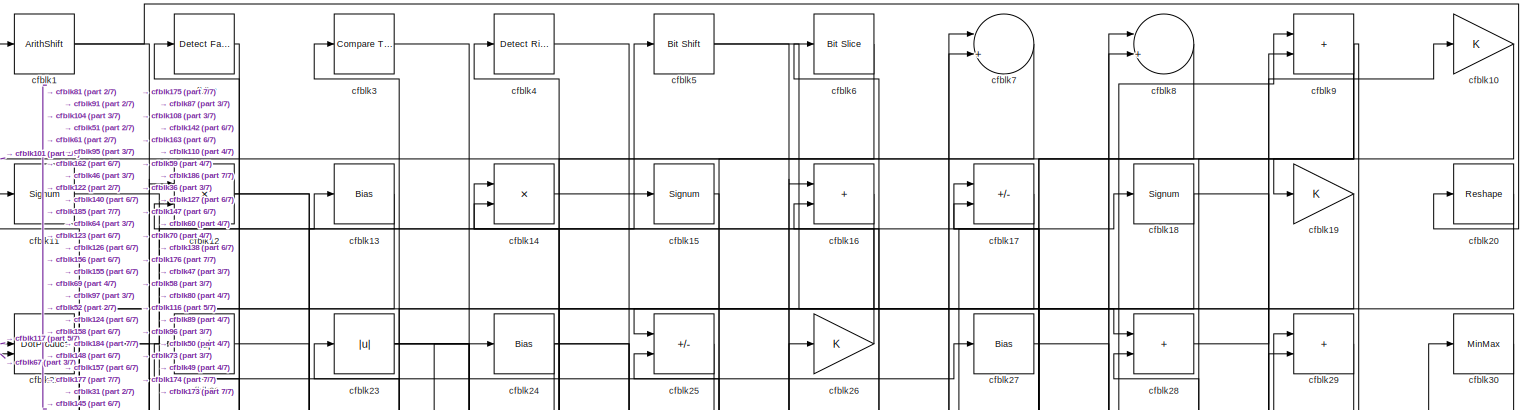
[diagram: root canvas - part 1/7, full width, top band]
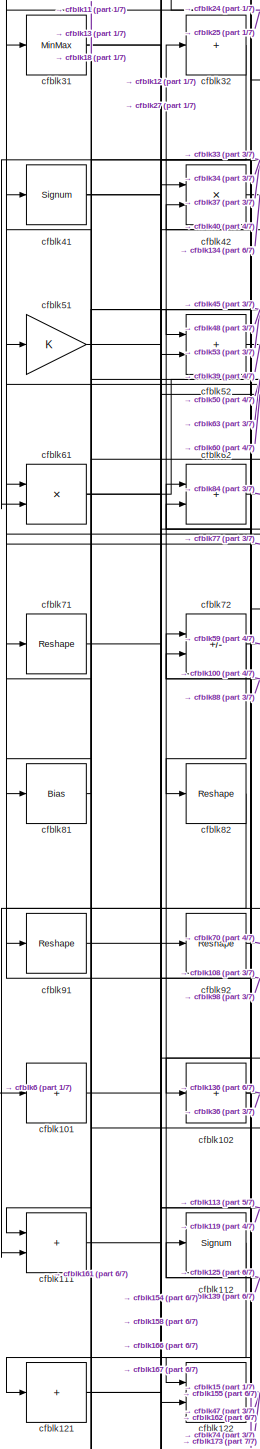
[diagram: root canvas - part 2/7, middle left region]
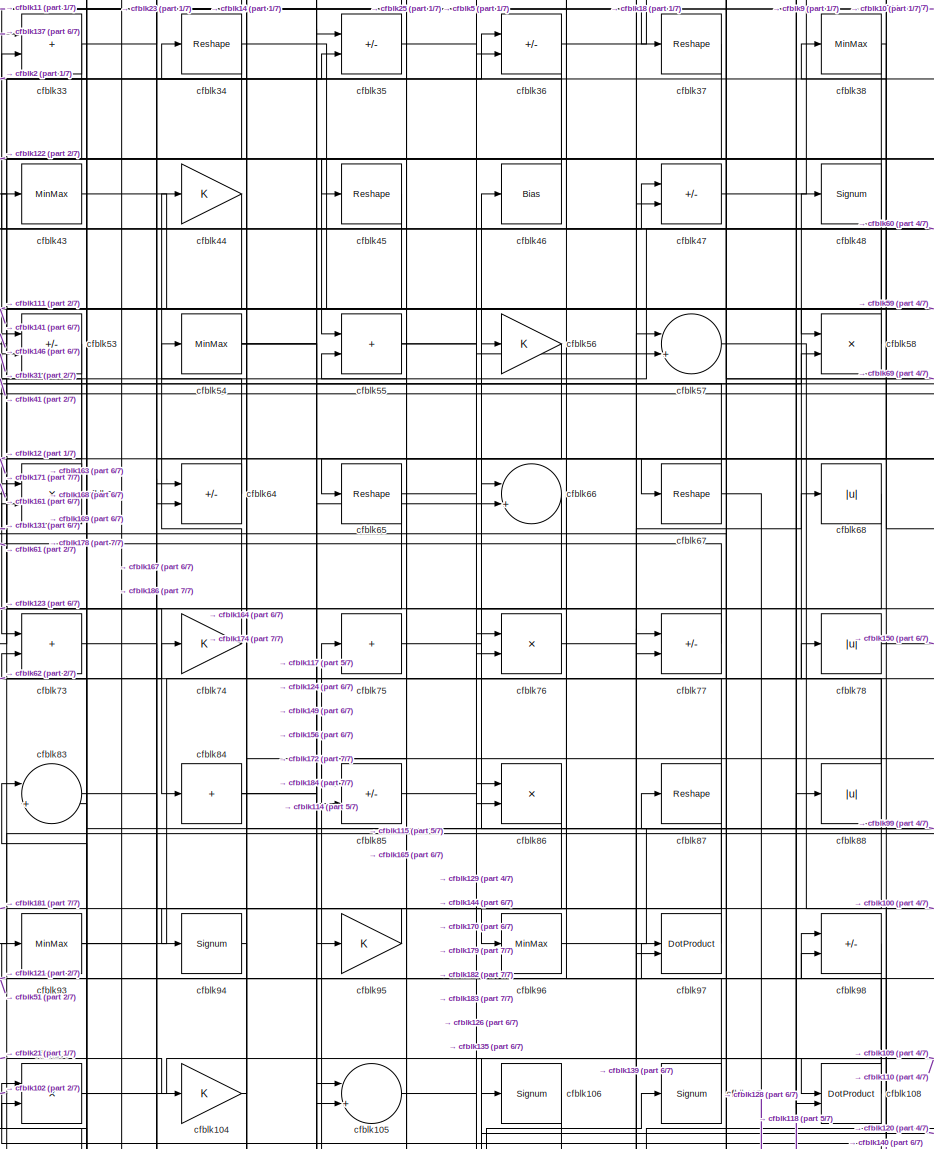
[diagram: root canvas - part 3/7, central region]
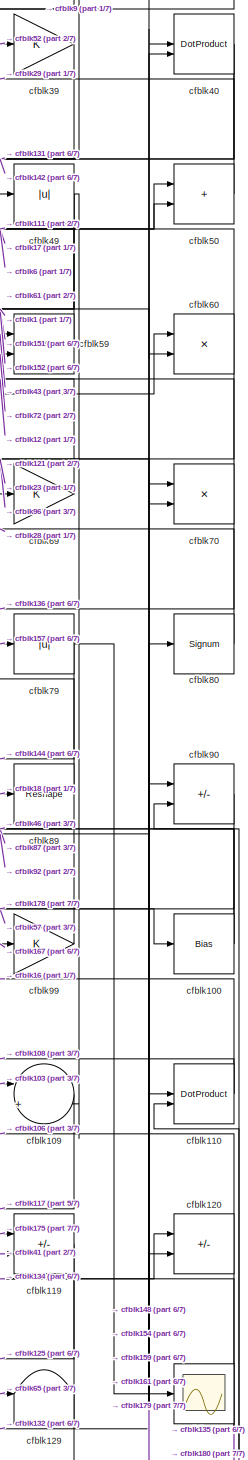
[diagram: root canvas - part 4/7, middle right region]
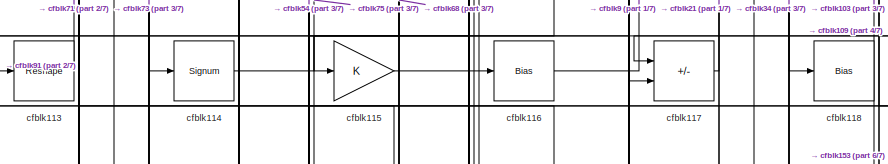
[diagram: root canvas - part 5/7, central region]
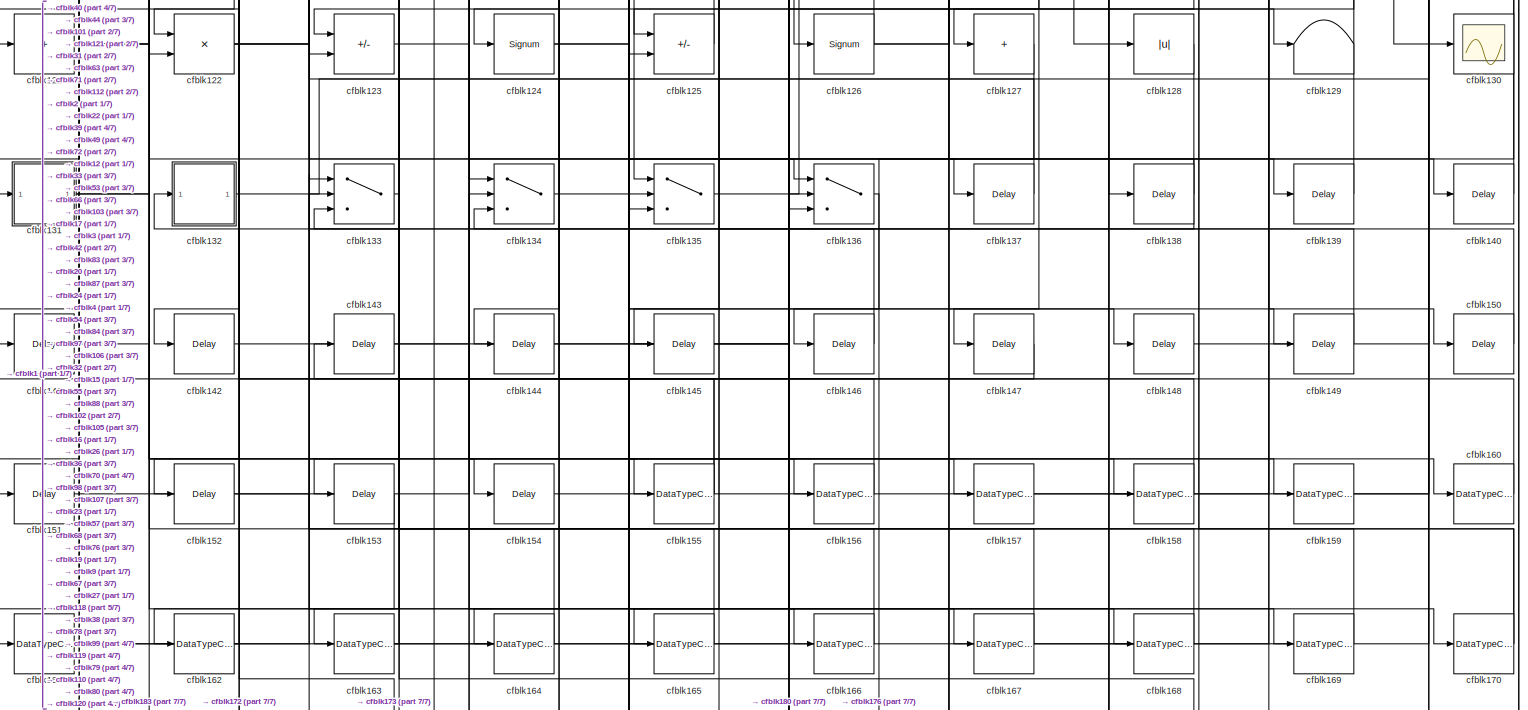
[diagram: root canvas - part 6/7, full width, bottom band]
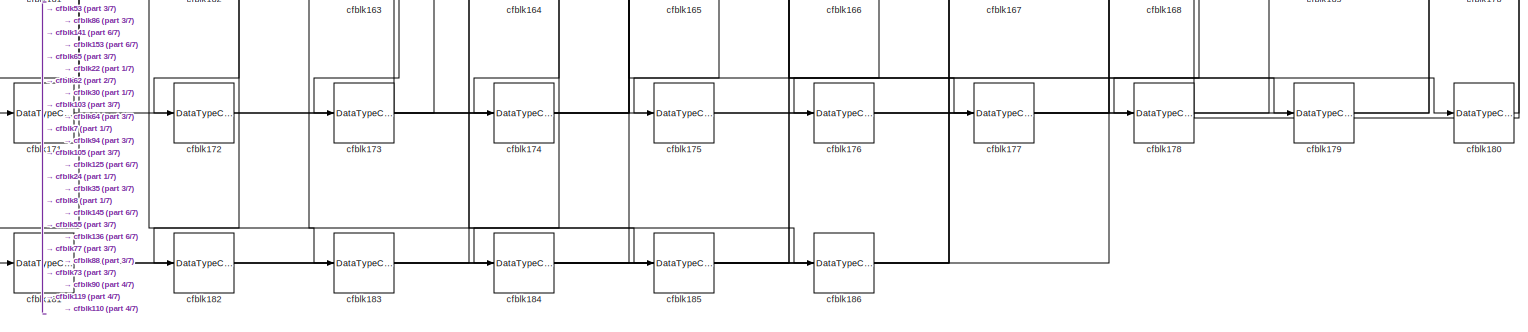
[diagram: root canvas - part 7/7, full width, bottom band]
MODEL slx_c9a8103a739a
KIND model
CONFIG AbsTol = auto
CONFIG EnableMultiTasking = off
CONFIG FixedStep = auto
CONFIG MaxStep = auto
CONFIG MinStep = auto
CONFIG RelTol = 1e-3
CONFIG SampleTimeConstraint = Unconstrained
CONFIG SolverName = VariableStepAuto
CONFIG StartTime = 0.0
CONFIG StopTime = 10.0
BLOCK [ArithShift] cfblk1
  BitShiftNumber = 8
  InputPortMap = u0
BLOCK [Gain] cfblk10
BLOCK [Bias] cfblk100
  Bias = 0.0
  SaturateOnIntegerOverflow = off
BLOCK [Sum] cfblk101
  IconShape = rectangular
  Inputs = +
BLOCK [Sum] cfblk102
  IconShape = rectangular
  Inputs = +
BLOCK [Product] cfblk103
  Inputs = */
  RndMeth = Zero
  SaturateOnIntegerOverflow = on
BLOCK [Gain] cfblk104
BLOCK [Sum] cfblk105
  Inputs = |++
BLOCK [Signum] cfblk106
BLOCK [Signum] cfblk107
BLOCK [DotProduct] cfblk108
  OutDataTypeStr = Inherit: Inherit via internal rule
BLOCK [Sum] cfblk109
  Inputs = |++
BLOCK [Signum] cfblk11
BLOCK [DotProduct] cfblk110
  OutDataTypeStr = Inherit: Inherit via internal rule
BLOCK [Sum] cfblk111
  IconShape = rectangular
BLOCK [Signum] cfblk112
BLOCK [Reshape] cfblk113
BLOCK [Signum] cfblk114
BLOCK [Gain] cfblk115
BLOCK [Bias] cfblk116
  Bias = 0.0
  SaturateOnIntegerOverflow = off
BLOCK [Sum] cfblk117
  IconShape = rectangular
  Inputs = +-
BLOCK [Bias] cfblk118
  Bias = 0.0
  SaturateOnIntegerOverflow = off
BLOCK [Sum] cfblk119
  IconShape = rectangular
  Inputs = +-
BLOCK [Product] cfblk12
  Inputs = */
  RndMeth = Zero
  SaturateOnIntegerOverflow = on
BLOCK [Sum] cfblk120
  IconShape = rectangular
  Inputs = +-
BLOCK [Sum] cfblk121
  IconShape = rectangular
  Inputs = +
BLOCK [Product] cfblk122
  Inputs = */
  RndMeth = Zero
  SaturateOnIntegerOverflow = on
BLOCK [Sum] cfblk123
  IconShape = rectangular
  Inputs = +-
BLOCK [Signum] cfblk124
BLOCK [Sum] cfblk125
  IconShape = rectangular
  Inputs = +-
BLOCK [Signum] cfblk126
BLOCK [Sum] cfblk127
  IconShape = rectangular
  Inputs = +
BLOCK [Abs] cfblk128
  SaturateOnIntegerOverflow = off
BLOCK [Terminator] cfblk129
BLOCK [Bias] cfblk13
  Bias = 0.0
  SaturateOnIntegerOverflow = off
BLOCK [Scope] cfblk130
  Floating = off
  NumInputPorts = 1
  ScopeSpecificationString = Simulink.scopes.TimeScopeBlockCfg('CurrentConfiguration', extmgr.ConfigurationSet(extmgr.Configuration('Core','General UI',true),extmgr.Configuration('Core','Source UI',true),extmgr.Configuration('Sources','WiredSimulink',true,'DataLoggingVariableName','ScopeData2','DataLoggingSaveFormat','Array','DataLoggingLimitDataPoints',true,'DataLoggingDecimation','1'),extmgr.Configuration('Visuals','Time Do...<+868ch>
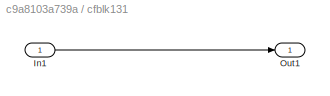
BLOCK [SubSystem] cfblk131
  LibrarySourceBlock = hdlsllib/Ports &\nSubsystems/Subsystem
BLOCK [Inport] cfblk131/In1
BLOCK [Outport] cfblk131/Out1
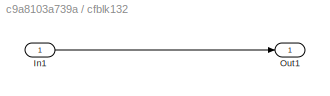
BLOCK [SubSystem] cfblk132
  LibrarySourceBlock = hdlsllib/Ports &\nSubsystems/Subsystem
BLOCK [Inport] cfblk132/In1
BLOCK [Outport] cfblk132/Out1
BLOCK [Switch] cfblk133
  InputSameDT = off
  SaturateOnIntegerOverflow = off
BLOCK [Switch] cfblk134
  InputSameDT = off
  SaturateOnIntegerOverflow = off
BLOCK [Switch] cfblk135
  InputSameDT = off
  SaturateOnIntegerOverflow = off
BLOCK [Switch] cfblk136
  InputSameDT = off
  SaturateOnIntegerOverflow = off
BLOCK [Delay] cfblk137
  InputPortMap = u0
  SampleTime = 1
BLOCK [Delay] cfblk138
  InputPortMap = u0
  SampleTime = 1
BLOCK [Delay] cfblk139
  InputPortMap = u0
  SampleTime = 1
BLOCK [Product] cfblk14
  Inputs = */
  RndMeth = Zero
  SaturateOnIntegerOverflow = on
BLOCK [Delay] cfblk140
  InputPortMap = u0
  SampleTime = 1
BLOCK [Delay] cfblk141
  InputPortMap = u0
  SampleTime = 1
BLOCK [Delay] cfblk142
  InputPortMap = u0
  SampleTime = 1
BLOCK [Delay] cfblk143
  InputPortMap = u0
  SampleTime = 1
BLOCK [Delay] cfblk144
  InputPortMap = u0
  SampleTime = 1
BLOCK [Delay] cfblk145
  InputPortMap = u0
  SampleTime = 1
BLOCK [Delay] cfblk146
  InputPortMap = u0
  SampleTime = 1
BLOCK [Delay] cfblk147
  InputPortMap = u0
  SampleTime = 1
BLOCK [Delay] cfblk148
  InputPortMap = u0
  SampleTime = 1
BLOCK [Delay] cfblk149
  InputPortMap = u0
  SampleTime = 1
BLOCK [Signum] cfblk15
BLOCK [Delay] cfblk150
  InputPortMap = u0
  SampleTime = 1
BLOCK [Delay] cfblk151
  InputPortMap = u0
  SampleTime = 1
BLOCK [Delay] cfblk152
  InputPortMap = u0
  SampleTime = 1
BLOCK [Delay] cfblk153
  InputPortMap = u0
  SampleTime = 1
BLOCK [Delay] cfblk154
  InputPortMap = u0
  SampleTime = 1
BLOCK [DataTypeConversion] cfblk155
  RndMeth = Floor
  SaturateOnIntegerOverflow = off
BLOCK [DataTypeConversion] cfblk156
  OutDataTypeStr = uint8
  RndMeth = Floor
  SaturateOnIntegerOverflow = off
BLOCK [DataTypeConversion] cfblk157
  OutDataTypeStr = uint8
  RndMeth = Floor
  SaturateOnIntegerOverflow = off
BLOCK [DataTypeConversion] cfblk158
  OutDataTypeStr = uint8
  RndMeth = Floor
  SaturateOnIntegerOverflow = off
BLOCK [DataTypeConversion] cfblk159
  OutDataTypeStr = uint8
  RndMeth = Floor
  SaturateOnIntegerOverflow = off
BLOCK [Sum] cfblk16
  IconShape = rectangular
BLOCK [DataTypeConversion] cfblk160
  OutDataTypeStr = uint8
  RndMeth = Floor
  SaturateOnIntegerOverflow = off
BLOCK [DataTypeConversion] cfblk161
  RndMeth = Floor
  SaturateOnIntegerOverflow = off
BLOCK [DataTypeConversion] cfblk162
  OutDataTypeStr = uint8
  RndMeth = Floor
  SaturateOnIntegerOverflow = off
BLOCK [DataTypeConversion] cfblk163
  RndMeth = Floor
  SaturateOnIntegerOverflow = off
BLOCK [DataTypeConversion] cfblk164
  OutDataTypeStr = uint8
  RndMeth = Floor
  SaturateOnIntegerOverflow = off
BLOCK [DataTypeConversion] cfblk165
  OutDataTypeStr = uint8
  RndMeth = Floor
  SaturateOnIntegerOverflow = off
BLOCK [DataTypeConversion] cfblk166
  OutDataTypeStr = uint8
  RndMeth = Floor
  SaturateOnIntegerOverflow = off
BLOCK [DataTypeConversion] cfblk167
  RndMeth = Floor
  SaturateOnIntegerOverflow = off
BLOCK [DataTypeConversion] cfblk168
  OutDataTypeStr = uint8
  RndMeth = Floor
  SaturateOnIntegerOverflow = off
BLOCK [DataTypeConversion] cfblk169
  OutDataTypeStr = uint8
  RndMeth = Floor
  SaturateOnIntegerOverflow = off
BLOCK [Sum] cfblk17
  IconShape = rectangular
  Inputs = +-
BLOCK [DataTypeConversion] cfblk170
  RndMeth = Floor
  SaturateOnIntegerOverflow = off
BLOCK [DataTypeConversion] cfblk171
  OutDataTypeStr = uint8
  RndMeth = Floor
  SaturateOnIntegerOverflow = off
BLOCK [DataTypeConversion] cfblk172
  OutDataTypeStr = uint8
  RndMeth = Floor
  SaturateOnIntegerOverflow = off
BLOCK [DataTypeConversion] cfblk173
  RndMeth = Floor
  SaturateOnIntegerOverflow = off
BLOCK [DataTypeConversion] cfblk174
  OutDataTypeStr = uint8
  RndMeth = Floor
  SaturateOnIntegerOverflow = off
BLOCK [DataTypeConversion] cfblk175
  OutDataTypeStr = uint8
  RndMeth = Floor
  SaturateOnIntegerOverflow = off
BLOCK [DataTypeConversion] cfblk176
  OutDataTypeStr = uint8
  RndMeth = Floor
  SaturateOnIntegerOverflow = off
BLOCK [DataTypeConversion] cfblk177
  OutDataTypeStr = uint8
  RndMeth = Floor
  SaturateOnIntegerOverflow = off
BLOCK [DataTypeConversion] cfblk178
  RndMeth = Floor
  SaturateOnIntegerOverflow = off
BLOCK [DataTypeConversion] cfblk179
  OutDataTypeStr = uint8
  RndMeth = Floor
  SaturateOnIntegerOverflow = off
BLOCK [Signum] cfblk18
BLOCK [DataTypeConversion] cfblk180
  OutDataTypeStr = uint8
  RndMeth = Floor
  SaturateOnIntegerOverflow = off
BLOCK [DataTypeConversion] cfblk181
  RndMeth = Floor
  SaturateOnIntegerOverflow = off
BLOCK [DataTypeConversion] cfblk182
  OutDataTypeStr = uint8
  RndMeth = Floor
  SaturateOnIntegerOverflow = off
BLOCK [DataTypeConversion] cfblk183
  OutDataTypeStr = uint8
  RndMeth = Floor
  SaturateOnIntegerOverflow = off
BLOCK [DataTypeConversion] cfblk184
  RndMeth = Floor
  SaturateOnIntegerOverflow = off
BLOCK [DataTypeConversion] cfblk185
  OutDataTypeStr = uint8
  RndMeth = Floor
  SaturateOnIntegerOverflow = off
BLOCK [DataTypeConversion] cfblk186
  OutDataTypeStr = uint8
  RndMeth = Floor
  SaturateOnIntegerOverflow = off
BLOCK [Gain] cfblk19
BLOCK [Reference] cfblk2  REF=hdlsllib/Logic and Bit
Operations/Detect Fall
Negative
  SourceBlock = hdlsllib/Logic and Bit\nOperations/Detect Fall\nNegative
  SourceType = Detect Fall Negative
BLOCK [Reshape] cfblk20
BLOCK [DotProduct] cfblk21
  OutDataTypeStr = Inherit: Inherit via internal rule
BLOCK [Abs] cfblk22
  SaturateOnIntegerOverflow = off
BLOCK [Abs] cfblk23
  SaturateOnIntegerOverflow = off
BLOCK [Bias] cfblk24
  Bias = 0.0
  SaturateOnIntegerOverflow = off
BLOCK [Sum] cfblk25
  IconShape = rectangular
  Inputs = +-
BLOCK [Gain] cfblk26
BLOCK [Bias] cfblk27
  Bias = 0.0
  SaturateOnIntegerOverflow = off
BLOCK [Sum] cfblk28
  IconShape = rectangular
BLOCK [Sum] cfblk29
  IconShape = rectangular
BLOCK [Reference] cfblk3  REF=hdlsllib/Logic and Bit
Operations/Compare
To Constant
  SourceBlock = hdlsllib/Logic and Bit\nOperations/Compare\nTo Constant
  SourceType = Compare To Constant
BLOCK [MinMax] cfblk30
BLOCK [MinMax] cfblk31
BLOCK [Sum] cfblk32
  IconShape = rectangular
  Inputs = +
BLOCK [Sum] cfblk33
  IconShape = rectangular
BLOCK [Reshape] cfblk34
BLOCK [Sum] cfblk35
  IconShape = rectangular
  Inputs = +-
BLOCK [Sum] cfblk36
  IconShape = rectangular
  Inputs = +-
BLOCK [Reshape] cfblk37
BLOCK [MinMax] cfblk38
BLOCK [Gain] cfblk39
BLOCK [Reference] cfblk4  REF=hdlsllib/Logic and Bit
Operations/Detect Rise
Positive
  SourceBlock = hdlsllib/Logic and Bit\nOperations/Detect Rise\nPositive
  SourceType = Detect Rise Positive
BLOCK [DotProduct] cfblk40
  OutDataTypeStr = Inherit: Inherit via internal rule
BLOCK [Signum] cfblk41
BLOCK [Product] cfblk42
  Inputs = */
  RndMeth = Zero
  SaturateOnIntegerOverflow = on
BLOCK [MinMax] cfblk43
BLOCK [Gain] cfblk44
BLOCK [Reshape] cfblk45
BLOCK [Bias] cfblk46
  Bias = 0.0
  SaturateOnIntegerOverflow = off
BLOCK [Sum] cfblk47
  IconShape = rectangular
  Inputs = +-
BLOCK [Signum] cfblk48
BLOCK [Abs] cfblk49
  SaturateOnIntegerOverflow = off
BLOCK [Reference] cfblk5  REF=hdlsllib/Logic and Bit
Operations/Bit Shift
  SourceBlock = hdlsllib/Logic and Bit\nOperations/Bit Shift
  SourceType = Bit Shift
BLOCK [Sum] cfblk50
  IconShape = rectangular
BLOCK [Gain] cfblk51
BLOCK [Sum] cfblk52
  IconShape = rectangular
BLOCK [Sum] cfblk53
  IconShape = rectangular
  Inputs = +-
BLOCK [MinMax] cfblk54
BLOCK [Sum] cfblk55
  IconShape = rectangular
BLOCK [Gain] cfblk56
BLOCK [Sum] cfblk57
  Inputs = |++
BLOCK [Product] cfblk58
  Inputs = */
  RndMeth = Zero
  SaturateOnIntegerOverflow = on
BLOCK [Product] cfblk59
  Inputs = */
  RndMeth = Zero
  SaturateOnIntegerOverflow = on
BLOCK [Reference] cfblk6  REF=hdlsllib/Logic and Bit
Operations/Bit Slice
  SourceBlock = hdlsllib/Logic and Bit\nOperations/Bit Slice
  SourceType = Bit Slice
BLOCK [Product] cfblk60
  Inputs = */
  RndMeth = Zero
  SaturateOnIntegerOverflow = on
BLOCK [Product] cfblk61
  Inputs = */
  RndMeth = Zero
  SaturateOnIntegerOverflow = on
BLOCK [Sum] cfblk62
  IconShape = rectangular
BLOCK [Product] cfblk63
  Inputs = */
  RndMeth = Zero
  SaturateOnIntegerOverflow = on
BLOCK [Sum] cfblk64
  IconShape = rectangular
  Inputs = +-
BLOCK [Reshape] cfblk65
BLOCK [Sum] cfblk66
  Inputs = |++
BLOCK [Reshape] cfblk67
BLOCK [Abs] cfblk68
  SaturateOnIntegerOverflow = off
BLOCK [Gain] cfblk69
BLOCK [Sum] cfblk7
  Inputs = |++
BLOCK [Product] cfblk70
  Inputs = */
  RndMeth = Zero
  SaturateOnIntegerOverflow = on
BLOCK [Reshape] cfblk71
BLOCK [Sum] cfblk72
  IconShape = rectangular
  Inputs = +-
BLOCK [Sum] cfblk73
  IconShape = rectangular
BLOCK [Gain] cfblk74
BLOCK [Sum] cfblk75
  IconShape = rectangular
  Inputs = +
BLOCK [Product] cfblk76
  Inputs = */
  RndMeth = Zero
  SaturateOnIntegerOverflow = on
BLOCK [Sum] cfblk77
  IconShape = rectangular
  Inputs = +-
BLOCK [Abs] cfblk78
  SaturateOnIntegerOverflow = off
BLOCK [Abs] cfblk79
  SaturateOnIntegerOverflow = off
BLOCK [Sum] cfblk8
  Inputs = |++
BLOCK [Signum] cfblk80
BLOCK [Bias] cfblk81
  Bias = 0.0
  SaturateOnIntegerOverflow = off
BLOCK [Reshape] cfblk82
BLOCK [Sum] cfblk83
  Inputs = |++
BLOCK [Sum] cfblk84
  IconShape = rectangular
  Inputs = +
BLOCK [Sum] cfblk85
  IconShape = rectangular
  Inputs = +-
BLOCK [Product] cfblk86
  Inputs = */
  RndMeth = Zero
  SaturateOnIntegerOverflow = on
BLOCK [Reshape] cfblk87
BLOCK [Abs] cfblk88
  SaturateOnIntegerOverflow = off
BLOCK [Reshape] cfblk89
BLOCK [Sum] cfblk9
  IconShape = rectangular
BLOCK [Sum] cfblk90
  IconShape = rectangular
  Inputs = +-
BLOCK [Reshape] cfblk91
BLOCK [Reshape] cfblk92
BLOCK [MinMax] cfblk93
BLOCK [Signum] cfblk94
BLOCK [Gain] cfblk95
BLOCK [MinMax] cfblk96
BLOCK [DotProduct] cfblk97
  OutDataTypeStr = Inherit: Inherit via internal rule
BLOCK [Sum] cfblk98
  IconShape = rectangular
  Inputs = +-
BLOCK [Gain] cfblk99
NET cfblk100:1 -> cfblk46:1, cfblk72:1
LINE cfblk101:1 -> cfblk158:1
NET cfblk102:1 -> cfblk136:2, cfblk36:1
NET cfblk103:1 -> cfblk109:1, cfblk186:1
LINE cfblk104:1 -> cfblk14:2
LINE cfblk105:1 -> cfblk170:1
LINE cfblk106:1 -> cfblk135:1
LINE cfblk107:1 -> cfblk33:2
NET cfblk108:1 -> cfblk51:1, cfblk93:1
LINE cfblk109:1 -> cfblk117:1
LINE cfblk10:1 -> cfblk58:1
NET cfblk110:1 -> cfblk108:1, cfblk16:2
LINE cfblk111:1 -> cfblk50:2
LINE cfblk112:1 -> cfblk161:1
LINE cfblk113:1 -> cfblk71:1
LINE cfblk114:1 -> cfblk75:1
LINE cfblk115:1 -> cfblk116:1
LINE cfblk116:1 -> cfblk9:2
LINE cfblk117:1 -> cfblk21:1
NET cfblk118:1 -> cfblk103:1, cfblk153:1
LINE cfblk119:1 -> cfblk125:1
LINE cfblk11:1 -> cfblk95:1
NET cfblk120:1 -> cfblk106:1, cfblk135:3
NET cfblk121:1 -> cfblk166:1, cfblk60:1, cfblk98:1
NET cfblk122:1 -> cfblk15:1, cfblk47:1, cfblk74:1
LINE cfblk123:1 -> cfblk137:1
NET cfblk124:1 -> cfblk168:1, cfblk97:1
LINE cfblk125:1 -> cfblk32:1
NET cfblk126:1 -> cfblk23:1, cfblk57:1, cfblk68:1
LINE cfblk127:1 -> cfblk146:1
LINE cfblk128:1 -> cfblk132:1
NET cfblk12:1 -> cfblk140:1, cfblk64:2
LINE cfblk131/In1:1 -> cfblk131/Out1:1
NET cfblk131:1 -> cfblk160:1, cfblk63:2
LINE cfblk132/In1:1 -> cfblk132/Out1:1
LINE cfblk132:1 -> cfblk80:1
LINE cfblk133:1 -> cfblk163:1
LINE cfblk134:1 -> cfblk120:1
LINE cfblk135:1 -> cfblk107:1
LINE cfblk136:1 -> cfblk176:1
LINE cfblk137:1 -> cfblk33:1
LINE cfblk138:1 -> cfblk135:2
LINE cfblk139:1 -> cfblk42:2
LINE cfblk13:1 -> cfblk81:1
LINE cfblk140:1 -> cfblk98:2
LINE cfblk141:1 -> cfblk183:1
LINE cfblk142:1 -> cfblk16:1
LINE cfblk143:1 -> cfblk159:1
LINE cfblk144:1 -> cfblk36:2
LINE cfblk145:1 -> cfblk180:1
LINE cfblk146:1 -> cfblk53:1
LINE cfblk147:1 -> cfblk1:1
LINE cfblk148:1 -> cfblk110:1
LINE cfblk149:1 -> cfblk134:3
LINE cfblk14:1 -> cfblk5:1
LINE cfblk150:1 -> cfblk55:2
LINE cfblk151:1 -> cfblk134:2
LINE cfblk152:1 -> cfblk169:1
LINE cfblk153:1 -> cfblk172:1
LINE cfblk154:1 -> cfblk120:2
NET cfblk155:1 -> cfblk22:1, cfblk72:2
LINE cfblk156:1 -> cfblk3:1
LINE cfblk157:1 -> cfblk79:1
LINE cfblk158:1 -> cfblk4:1
LINE cfblk159:1 -> cfblk40:1
LINE cfblk15:1 -> cfblk145:1
LINE cfblk160:1 -> cfblk143:1
NET cfblk161:1 -> cfblk40:2, cfblk63:1
LINE cfblk162:1 -> cfblk112:1
NET cfblk163:1 -> cfblk103:2, cfblk26:1
LINE cfblk164:1 -> cfblk133:1
LINE cfblk165:1 -> cfblk133:2
LINE cfblk166:1 -> cfblk133:3
NET cfblk167:1 -> cfblk42:1, cfblk99:1
LINE cfblk168:1 -> cfblk83:1
LINE cfblk169:1 -> cfblk83:2
LINE cfblk16:1 -> cfblk25:1
NET cfblk170:1 -> cfblk38:1, cfblk76:1
LINE cfblk171:1 -> cfblk105:1
LINE cfblk172:1 -> cfblk105:2
NET cfblk173:1 -> cfblk125:2, cfblk24:1, cfblk62:2
LINE cfblk174:1 -> cfblk30:1
LINE cfblk175:1 -> cfblk119:1
LINE cfblk176:1 -> cfblk8:1
LINE cfblk177:1 -> cfblk8:2
NET cfblk178:1 -> cfblk110:2, cfblk73:2
LINE cfblk179:1 -> cfblk90:1
LINE cfblk17:1 -> cfblk123:1
LINE cfblk180:1 -> cfblk90:2
NET cfblk181:1 -> cfblk64:1, cfblk88:1
LINE cfblk182:1 -> cfblk86:1
LINE cfblk183:1 -> cfblk86:2
NET cfblk184:1 -> cfblk35:1, cfblk77:1
LINE cfblk185:1 -> cfblk7:1
LINE cfblk186:1 -> cfblk7:2
NET cfblk18:1 -> cfblk89:1, cfblk91:1
LINE cfblk19:1 -> cfblk147:1
NET cfblk1:1 -> cfblk20:1, cfblk60:2
LINE cfblk20:1 -> cfblk124:1
NET cfblk21:1 -> cfblk104:1, cfblk13:1
LINE cfblk22:1 -> cfblk185:1
NET cfblk23:1 -> cfblk69:1, cfblk70:2, cfblk97:2
NET cfblk24:1 -> cfblk148:1, cfblk177:1, cfblk52:1
LINE cfblk25:1 -> cfblk31:1
LINE cfblk26:1 -> cfblk14:1
LINE cfblk27:1 -> cfblk138:1
LINE cfblk28:1 -> cfblk10:1
LINE cfblk29:1 -> cfblk73:1
LINE cfblk2:1 -> cfblk162:1
LINE cfblk30:1 -> cfblk173:1
NET cfblk31:1 -> cfblk136:1, cfblk53:2
LINE cfblk32:1 -> cfblk61:2
NET cfblk33:1 -> cfblk102:1, cfblk37:1
NET cfblk34:1 -> cfblk118:1, cfblk122:2
LINE cfblk35:1 -> cfblk76:2
NET cfblk36:1 -> cfblk18:1, cfblk55:1
LINE cfblk37:1 -> cfblk122:1
NET cfblk38:1 -> cfblk47:2, cfblk65:1
LINE cfblk39:1 -> cfblk142:1
LINE cfblk3:1 -> cfblk155:1
NET cfblk40:1 -> cfblk131:1, cfblk52:2
NET cfblk41:1 -> cfblk119:2, cfblk92:1
LINE cfblk42:1 -> cfblk134:1
LINE cfblk43:1 -> cfblk59:1
LINE cfblk44:1 -> cfblk141:1
LINE cfblk45:1 -> cfblk111:1
LINE cfblk46:1 -> cfblk2:1
LINE cfblk47:1 -> cfblk9:1
NET cfblk48:1 -> cfblk121:1, cfblk45:1, cfblk85:2
NET cfblk49:1 -> cfblk109:2, cfblk151:1, cfblk152:1
LINE cfblk4:1 -> cfblk157:1
LINE cfblk50:1 -> cfblk29:1
LINE cfblk51:1 -> cfblk12:1
LINE cfblk52:1 -> cfblk39:1
LINE cfblk53:1 -> cfblk171:1
NET cfblk54:1 -> cfblk117:2, cfblk156:1, cfblk58:2
NET cfblk55:1 -> cfblk179:1, cfblk77:2
LINE cfblk56:1 -> cfblk85:1
LINE cfblk57:1 -> cfblk100:1
LINE cfblk58:1 -> cfblk56:1
LINE cfblk59:1 -> cfblk6:1
NET cfblk5:1 -> cfblk108:2, cfblk28:1
NET cfblk60:1 -> cfblk17:2, cfblk96:1
NET cfblk61:1 -> cfblk27:1, cfblk50:1
LINE cfblk62:1 -> cfblk84:1
LINE cfblk63:1 -> cfblk41:1
LINE cfblk64:1 -> cfblk44:1
NET cfblk65:1 -> cfblk129:1, cfblk182:1
LINE cfblk66:1 -> cfblk123:2
NET cfblk67:1 -> cfblk128:1, cfblk21:2
LINE cfblk68:1 -> cfblk115:1
LINE cfblk69:1 -> cfblk43:1
LINE cfblk6:1 -> cfblk101:1
NET cfblk70:1 -> cfblk12:2, cfblk136:3
LINE cfblk71:1 -> cfblk154:1
NET cfblk72:1 -> cfblk59:2, cfblk82:1
LINE cfblk73:1 -> cfblk114:1
LINE cfblk74:1 -> cfblk54:1
LINE cfblk75:1 -> cfblk66:1
LINE cfblk76:1 -> cfblk139:1
LINE cfblk77:1 -> cfblk61:1
LINE cfblk78:1 -> cfblk150:1
NET cfblk79:1 -> cfblk130:1, cfblk144:1
LINE cfblk7:1 -> cfblk184:1
LINE cfblk80:1 -> cfblk28:2
LINE cfblk81:1 -> cfblk11:1
LINE cfblk82:1 -> cfblk111:2
LINE cfblk83:1 -> cfblk167:1
NET cfblk84:1 -> cfblk149:1, cfblk66:2
LINE cfblk85:1 -> cfblk57:2
LINE cfblk86:1 -> cfblk181:1
NET cfblk87:1 -> cfblk164:1, cfblk25:2
NET cfblk88:1 -> cfblk165:1, cfblk48:1, cfblk62:1
LINE cfblk89:1 -> cfblk17:1
LINE cfblk8:1 -> cfblk175:1
LINE cfblk90:1 -> cfblk178:1
LINE cfblk91:1 -> cfblk113:1
LINE cfblk92:1 -> cfblk70:1
NET cfblk93:1 -> cfblk35:2, cfblk78:1
LINE cfblk94:1 -> cfblk174:1
LINE cfblk95:1 -> cfblk94:1
LINE cfblk96:1 -> cfblk29:2
LINE cfblk97:1 -> cfblk34:1
LINE cfblk98:1 -> cfblk126:1
LINE cfblk99:1 -> cfblk87:1
NET cfblk9:1 -> cfblk127:1, cfblk19:1, cfblk49:1, cfblk67:1
note: NET lines group one-source signal fan-out (src -> all destinations, sorted); 1:1 wires keep LINE
